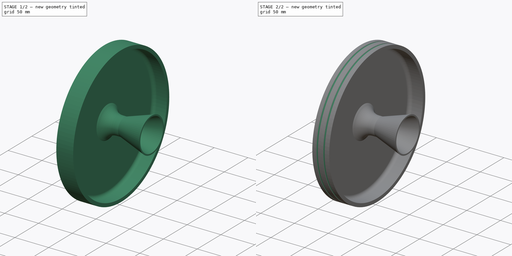
[diagram: build sequence overview — one tinted view per stage of 2, left to right]
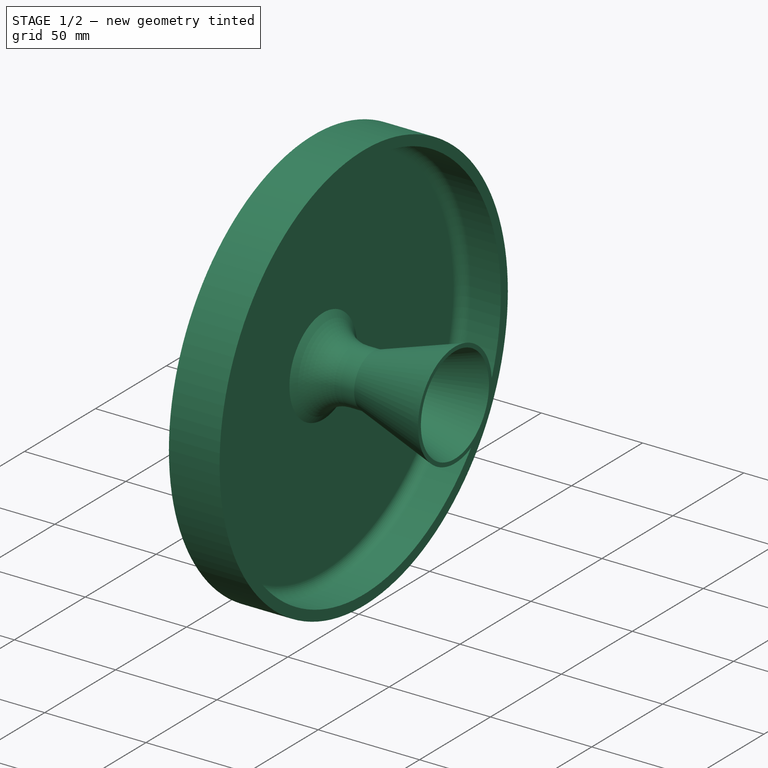
[diagram: stage 1 of 2 — iso view after this stage's code; geometry added in this stage tinted green]
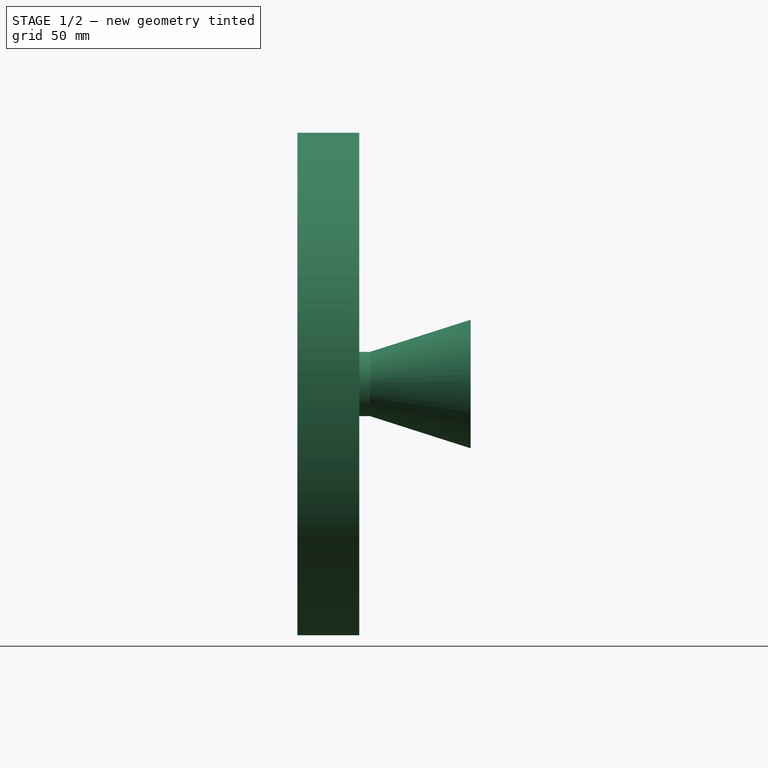
[diagram: stage 1 of 2 — front view after this stage's code; geometry added in this stage tinted green]
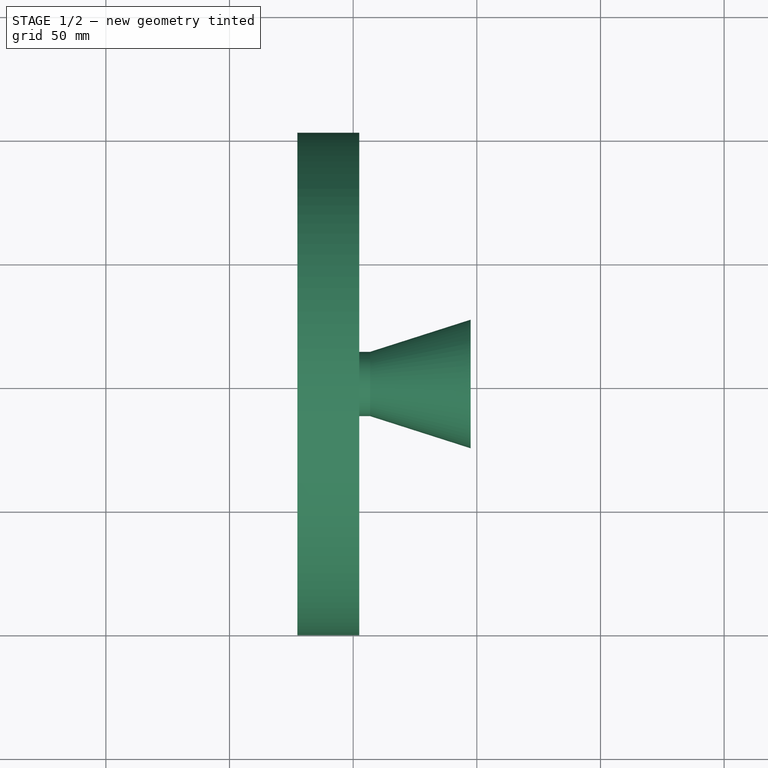
[diagram: stage 1 of 2 — top view after this stage's code; geometry added in this stage tinted green]
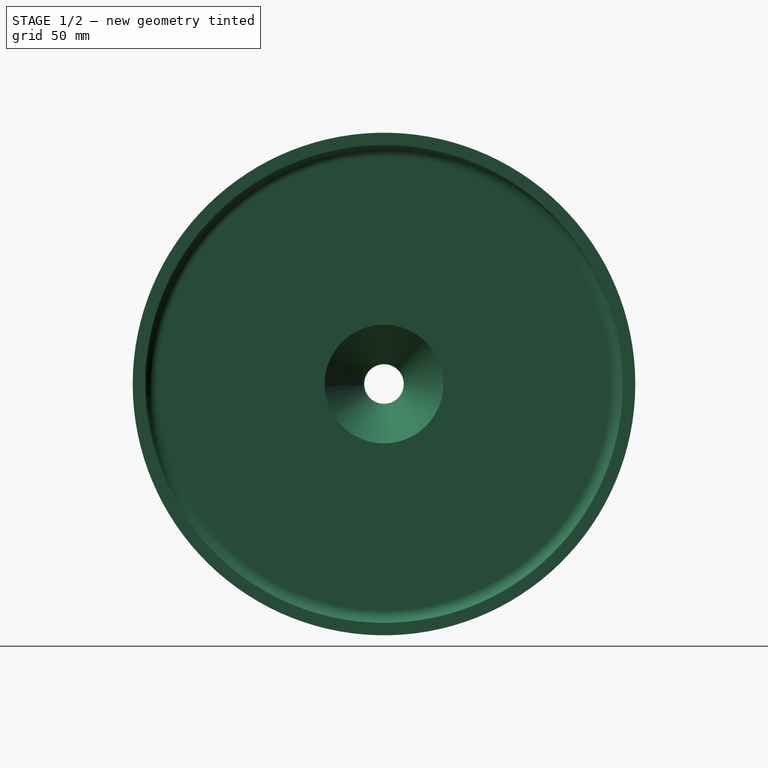
[diagram: stage 1 of 2 — right view after this stage's code; geometry added in this stage tinted green]
FCSTD DOCUMENT  (FreeCAD 0.19R24267 +148 (Git))
Label: rocket2
License: All rights reserved
LicenseURL: http://en.wikipedia.org/wiki/All_rights_reserved
objects: App::DocumentObjectGroup×3, PartDesign::CoordinateSystem×2, Sketcher::SketchObject×2, App::Part×2, App::FeaturePython×1, Spreadsheet::Sheet×1, PartDesign::Revolution×1, PartDesign::Groove×1, PartDesign::Body×1
note: 9 computed .brp shape members not serialized (recipe doc carries the construction recipe); baked Part::Feature solids carry a one-line shape summary decoded from their .brp

FEATURE [PartDesign::CoordinateSystem] LCS_Origin
  AttacherType = Attacher::AttachEngine3D
  MapMode = 2
  Support = -> [X_Axis]
FEATURE [App::FeaturePython] Variables  # WARN: FeaturePython — macro-defined, semantics opaque (R4)
  Type = App::PropertyContainer
  chamber_angle = 30
  exit_half_angle = 10
  exit_radius = 10
  throat_radius = 10
  throat_radius1 = 0
  useParabola = false
FEATURE [App::DocumentObjectGroup] Constraints
FEATURE [App::DocumentObjectGroup] Configurations
FEATURE [PartDesign::CoordinateSystem] LCS_0
  AttacherType = Attacher::AttachEngine3D
  MapMode = 2
  Support = -> [X_Axis001]
FEATURE [Spreadsheet::Sheet] Spreadsheet
  cells = A1=units; B1=mm-kg-s; A3=P0; A4=T0; A6=throat area; B6==3.14159265 * B11 * B11; A7=area ratio; B7=9; A8=half angle; B8=20; A9=exit area; B9==B6 * B7; A11=throat radius; B11=8; A12=exit radius; B12==sqrt(B7) * B11; A13=chamber radius; B13=101.6; A15=Nozzle Tip Thickness; B15=2; A16=Throat Thickenss; B16=5
FEATURE [Sketcher::SketchObject] Sketch001
  FullyConstrained = true
  MapMode = 5
  Support = -> [XY_Plane002]
  expr: Constraints[4] = Spreadsheet.B11
  expr: Constraints[25] = Spreadsheet.B16
  expr: Constraints[5] = Spreadsheet.B12
  expr: Constraints[9] = Spreadsheet.B8
  expr: Constraints[14] = Spreadsheet.B13
  expr: Constraints[24] = Spreadsheet.B15
  expr: Constraints[43] = Spreadsheet.B11 * 3
  expr: Constraints[36] = Spreadsheet.B16
  sketch-geometry (15):
    g0: LineSegment StartX=47.4862 StartY=24 StartZ=0 EndX=6.8404 EndY=9.20615 EndZ=0
    g1: ArcOfCircle CenterX=0 CenterY=32 CenterZ=0 NormalX=0 NormalY=0 NormalZ=1 AngleXU=0 Radius=24 StartAngle=3.49066 EndAngle=4.71239
    g2: LineSegment StartX=0 StartY=32 StartZ=0 EndX=-22.5526 EndY=23.7915 EndZ=0
    g3: ArcOfCircle CenterX=0 CenterY=28 CenterZ=0 NormalX=0 NormalY=0 NormalZ=1 AngleXU=0 Radius=20 StartAngle=4.71239 EndAngle=5.06145
    g4: LineSegment StartX=-22.5526 StartY=23.7915 StartZ=0 EndX=-22.5526 EndY=101.6 EndZ=0
    g5: LineSegment StartX=47.4862 StartY=24 StartZ=0 EndX=47.4862 EndY=26 EndZ=0
    g6: LineSegment StartX=6.8404 StartY=9.20615 StartZ=0 EndX=6.8404 EndY=13 EndZ=0
    g7: LineSegment StartX=6.8404 StartY=13 StartZ=0 EndX=-3.6e-15 EndY=13 EndZ=0
    g8: LineSegment StartX=47.4862 StartY=26 StartZ=0 EndX=6.8404 EndY=13 EndZ=0
    g9: LineSegment StartX=-22.5526 StartY=101.6 StartZ=0 EndX=2.44738 EndY=101.6 EndZ=0
    g10: LineSegment StartX=2.44738 StartY=101.6 StartZ=0 EndX=2.44738 EndY=96.6 EndZ=0
    g11: LineSegment StartX=2.44738 StartY=96.6 StartZ=0 EndX=-12.5526 EndY=96.6 EndZ=0
    g12: ArcOfCircle CenterX=0 CenterY=32.6706 CenterZ=0 NormalX=0 NormalY=0 NormalZ=1 AngleXU=0 Radius=19.6706 StartAngle=3.60991 EndAngle=4.71239
    g13: LineSegment StartX=-17.5526 StartY=23.7915 StartZ=0 EndX=-17.5526 EndY=91.6 EndZ=0
    g14: ArcOfCircle CenterX=-12.5526 CenterY=91.6 CenterZ=0 NormalX=0 NormalY=0 NormalZ=1 AngleXU=0 Radius=5 StartAngle=1.5708 EndAngle=3.14159
  constraints (44):
    c: PointOnObject(g1,g-2)
    c: PointOnObject(g1,g-2)
    c: Coincident(g2,g1)
    c: Coincident(g2,g1)
    c: DistanceY(g-1,g1) = 8
    c: DistanceY(g-1,g0) = 24
    c: PointOnObject(g3,g-2)
    c: Coincident(g3,g1)
    c: Tangent(g3,g0) = 1.5708
    c: Angle(g-1,g0) = 0.349066
    c: Radius(g3) = 20
    c: Angle(g2,g-2) = 1.22173
    c: Coincident(g4,g1)
    c: Vertical(g4)
    c: DistanceY(g-1,g4) = 101.6
    c: Coincident(g5,g0)
    c: Vertical(g5)
    c: Coincident(g6,g0)
    c: Vertical(g6)
    c: Coincident(g7,g6)
    c: PointOnObject(g7,g-2)
    c: Horizontal(g7)
    c: Coincident(g8,g5)
    c: Coincident(g8,g6)
    c: DistanceY(g5,g5) = 2
    c: DistanceY(g1,g7) = 5
    c: Coincident(g9,g4)
    c: Horizontal(g9)
    c: Coincident(g10,g9)
    c: Vertical(g10)
    c: Coincident(g11,g10)
    c: Horizontal(g11)
    c: PointOnObject(g12,g-2)
    c: Coincident(g12,g7)
    c: DistanceY(g10,g10) = 5
    c: DistanceX(g4,g9) = 25
    c: DistanceX(g1,g12) = 5
    c: Horizontal(g12,g1)
    c: Coincident(g13,g12)
    c: Vertical(g13)
    c: Tangent(g14,g13) = 1.5708
    c: Tangent(g14,g11) = -1.5708
    c: Radius(g14) = 5
    c: Radius(g1) = 24
FEATURE [PartDesign::Revolution] Revolution
  Angle = 360
  Axis = (1,0,0)
  Base = (0,0,0)
  Profile = -> Sketch001
  ReferenceAxis = -> Sketch001 [H_Axis]
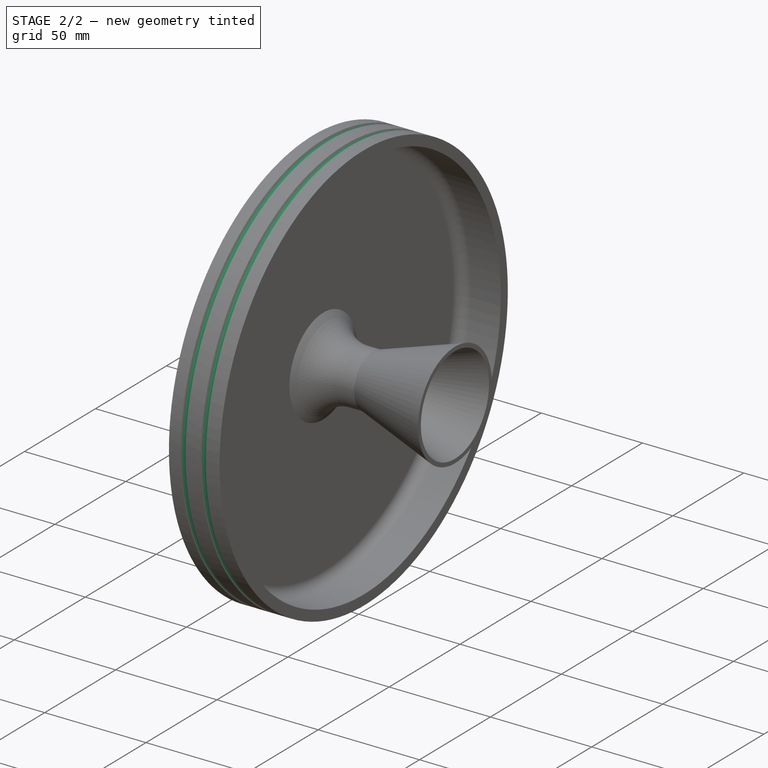
[diagram: stage 2 of 2 — iso view after this stage's code; geometry added in this stage tinted green]
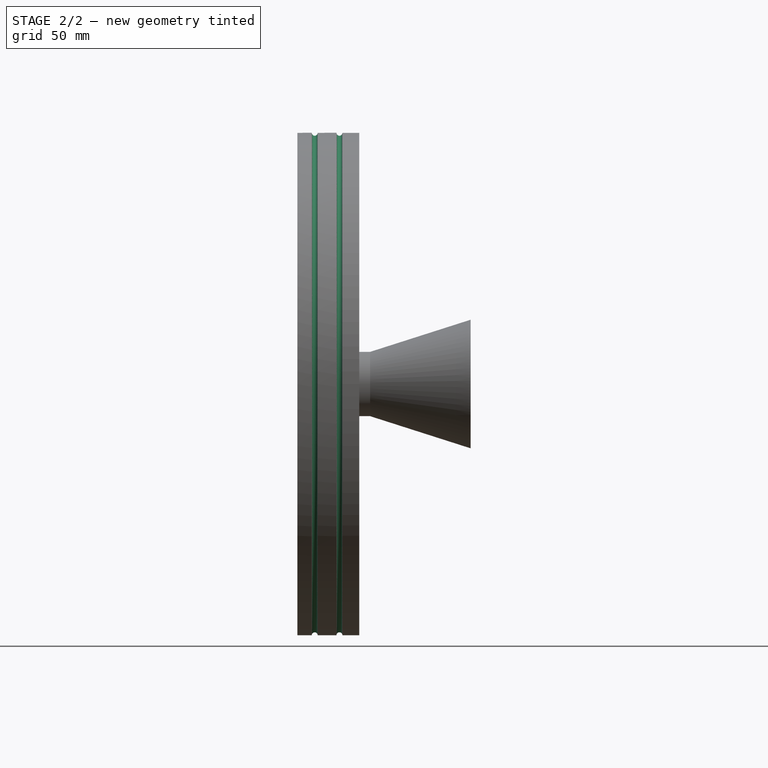
[diagram: stage 2 of 2 — front view after this stage's code; geometry added in this stage tinted green]
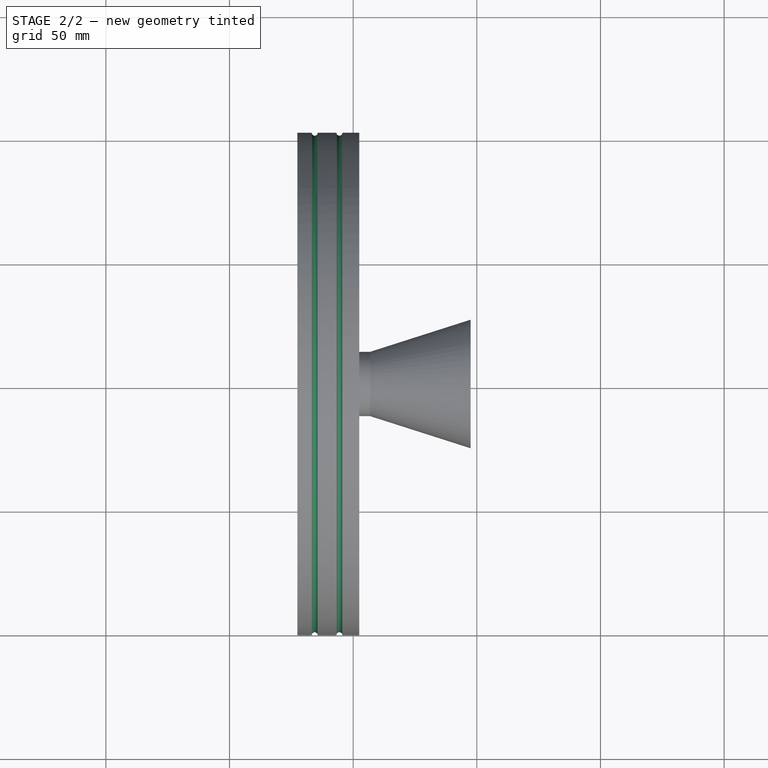
[diagram: stage 2 of 2 — top view after this stage's code; geometry added in this stage tinted green]
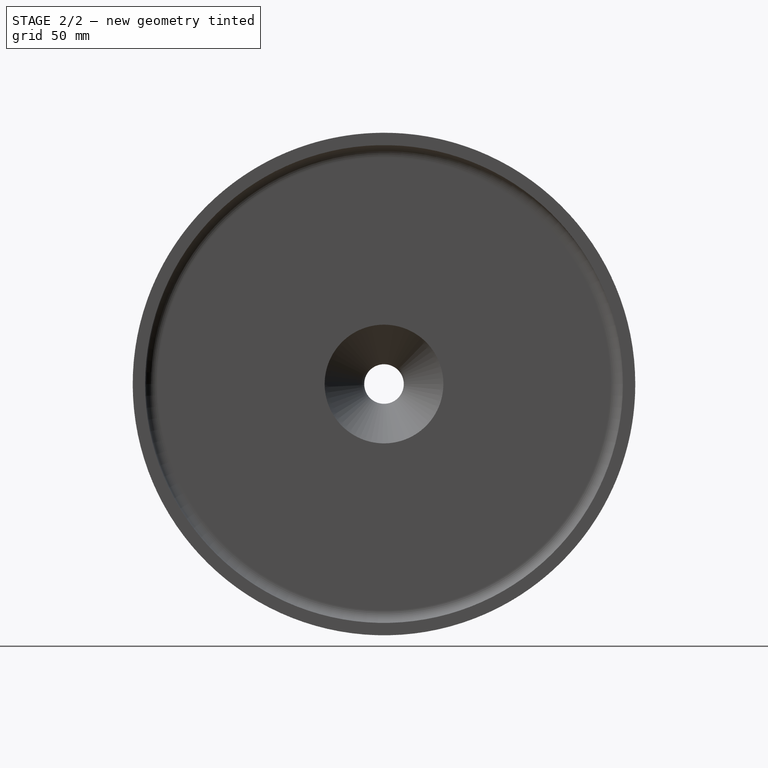
[diagram: stage 2 of 2 — right view after this stage's code; geometry added in this stage tinted green]
FEATURE [Sketcher::SketchObject] Sketch
  ExternalGeometry = -> [Revolution]
  FullyConstrained = true
  MapMode = 5
  Support = -> [XY_Plane002]
  sketch-geometry (2):
    g0: Circle CenterX=-15.5526 CenterY=101.6 CenterZ=0 NormalX=0 NormalY=0 NormalZ=1 AngleXU=0 Radius=1.2
    g1: Circle CenterX=-5.55262 CenterY=101.6 CenterZ=0 NormalX=0 NormalY=0 NormalZ=1 AngleXU=0 Radius=1.2
  constraints (6):
    c: PointOnObject(g0,g-3)
    c: PointOnObject(g1,g-3)
    c: Equal(g0,g1)
    c: Radius(g1) = 1.2
    c: DistanceX(g0,g1) = 10
    c: DistanceX(g1,g-3) = 8
FEATURE [PartDesign::Groove] Groove
  Angle = 360
  Axis = (1,0,0)
  Base = (0,0,0)
  BaseFeature = -> Revolution
  Profile = -> Sketch
  ReferenceAxis = -> Sketch [H_Axis]
  Reversed = true
FEATURE [PartDesign::Body] Body
  Group = -> [Sketch001,Revolution,Sketch,Groove]
  Origin = -> Origin002
  Tip = -> Groove
FEATURE [App::Part] Nozzle
  Group = -> [LCS_0,Body]
  Origin = -> Origin001
FEATURE [App::Part] Assembly  label="motor"
  AssemblyType = Part::Link
  Group = -> [LCS_Origin,Variables,Constraints,Configurations,Nozzle]
  LabelDocUser = rocket
  LabelPartUser = motor
  Origin = -> Origin
  Type = Assembly
FEATURE [App::DocumentObjectGroup] Parts
  Group = -> [Assembly]
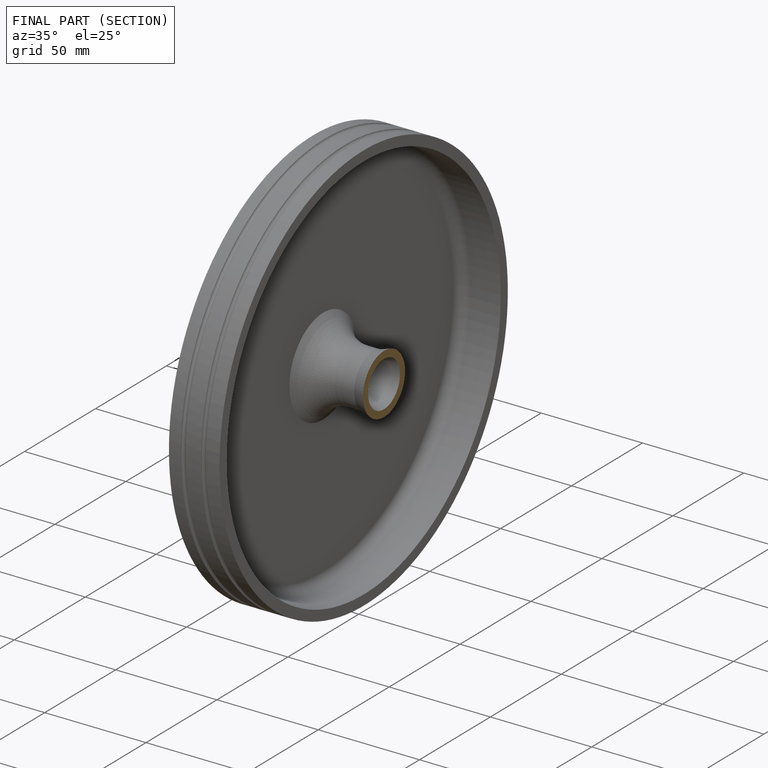
[diagram: finished part — half-section view (interior)]
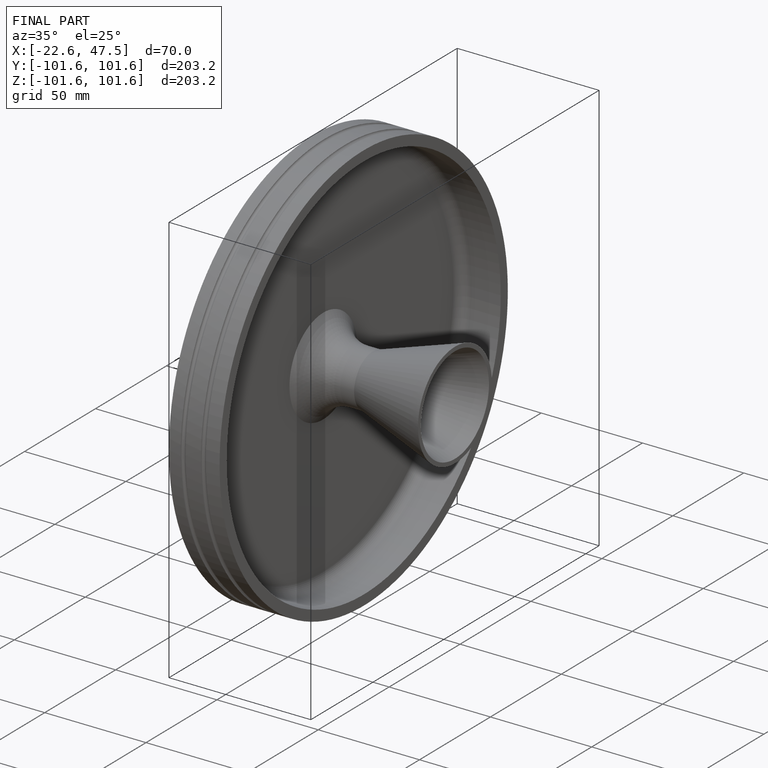
[diagram: finished part — iso view with bounding-box wireframe]
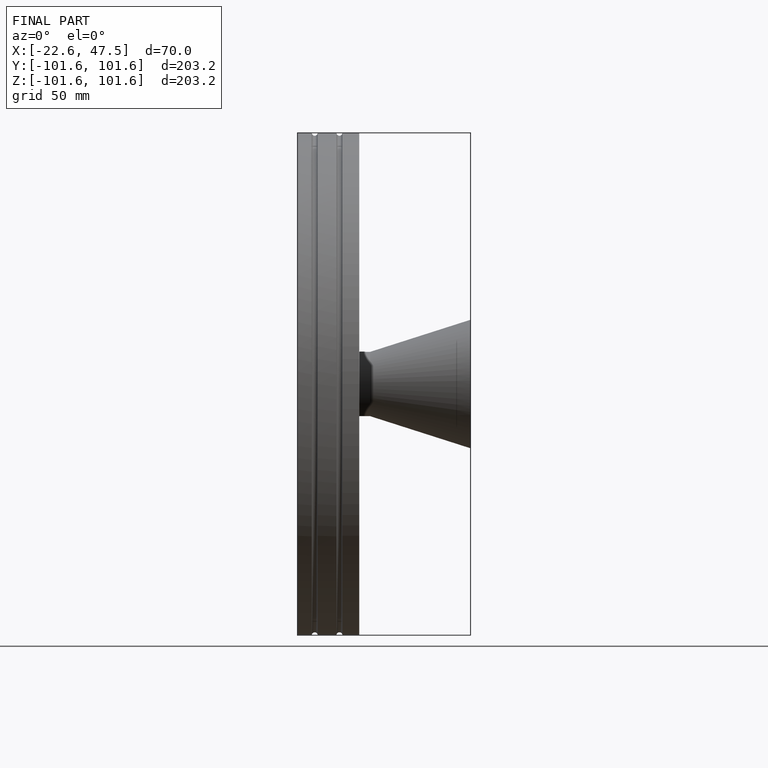
[diagram: finished part — front view with bounding-box wireframe]
